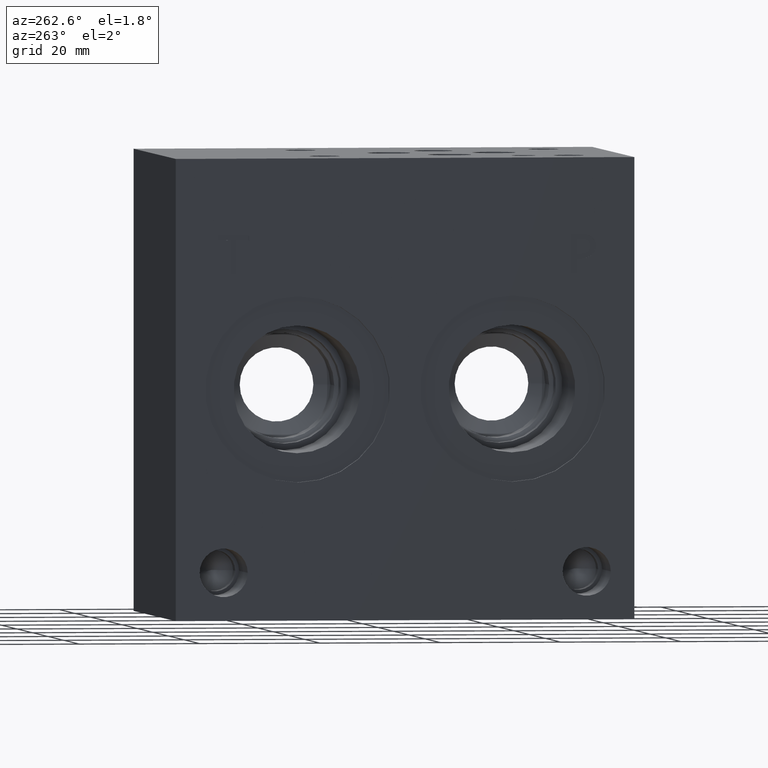
[diagram: clean part render]
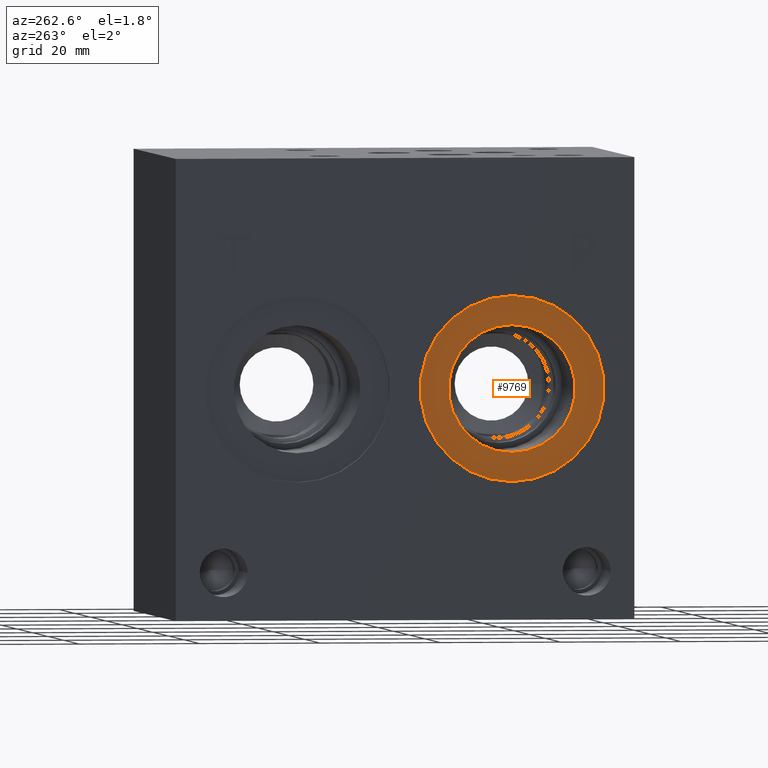
[diagram: same view with one face highlighted and labeled with its STEP entity id]
A machine part, auxiliary view. The second image highlights one B-rep face of the part: STEP entity #9769.
In plain terms, the highlighted planar face has unit normal (1, 0, 0).
Its self-contained STEP definition (entity closure, byte-faithful):
#198=CIRCLE('',#10273,15.3416);
#199=CIRCLE('',#10274,15.3416);
#200=CIRCLE('',#10276,10.5283);
#201=CIRCLE('',#10277,10.5283);
#318=FACE_BOUND('',#1726,.T.);
#1164=FACE_OUTER_BOUND('',#1725,.T.);
#1725=EDGE_LOOP('',(#8412,#8413));
#1726=EDGE_LOOP('',(#8414,#8415));
#4497=VERTEX_POINT('',#16580);
#4498=VERTEX_POINT('',#16582);
#4499=VERTEX_POINT('',#16586);
#4500=VERTEX_POINT('',#16587);
#5828=EDGE_CURVE('',#4497,#4498,#198,.T.);
#5829=EDGE_CURVE('',#4498,#4497,#199,.T.);
#5830=EDGE_CURVE('',#4499,#4500,#200,.T.);
#5831=EDGE_CURVE('',#4500,#4499,#201,.T.);
#8412=ORIENTED_EDGE('',*,*,#5829,.F.);
#8413=ORIENTED_EDGE('',*,*,#5828,.F.);
#8414=ORIENTED_EDGE('',*,*,#5830,.T.);
#8415=ORIENTED_EDGE('',*,*,#5831,.T.);
#8905=PLANE('',#10275);
#9769=ADVANCED_FACE('',(#1164,#318),#8905,.F.);
#10273=AXIS2_PLACEMENT_3D('',#16583,#12180,#12181);
#10274=AXIS2_PLACEMENT_3D('',#16584,#12182,#12183);
#10275=AXIS2_PLACEMENT_3D('',#16585,#12184,#12185);
#10276=AXIS2_PLACEMENT_3D('',#16588,#12186,#12187);
#10277=AXIS2_PLACEMENT_3D('',#16589,#12188,#12189);
#12180=DIRECTION('center_axis',(1.,0.,0.));
#12181=DIRECTION('ref_axis',(0.,0.,-1.));
#12182=DIRECTION('center_axis',(1.,0.,0.));
#12183=DIRECTION('ref_axis',(0.,0.,-1.));
#12184=DIRECTION('center_axis',(1.,0.,0.));
#12185=DIRECTION('ref_axis',(0.,0.,-1.));
#12186=DIRECTION('center_axis',(1.,0.,0.));
#12187=DIRECTION('ref_axis',(0.,0.,-1.));
#12188=DIRECTION('center_axis',(1.,0.,0.));
#12189=DIRECTION('ref_axis',(0.,0.,-1.));
#16580=CARTESIAN_POINT('',(0.7874,20.2438,22.7584));
#16582=CARTESIAN_POINT('',(0.7874,20.2438,53.4416));
#16583=CARTESIAN_POINT('Origin',(0.7874,20.2438,38.1));
#16584=CARTESIAN_POINT('Origin',(0.7874,20.2438,38.1));
#16585=CARTESIAN_POINT('Origin',(0.7874,20.2438,48.6283));
#16586=CARTESIAN_POINT('',(0.7874,20.2438,48.6283));
#16587=CARTESIAN_POINT('',(0.787400000000001,20.2438,27.5717));
#16588=CARTESIAN_POINT('Origin',(0.7874,20.2438,38.1));
#16589=CARTESIAN_POINT('Origin',(0.7874,20.2438,38.1));